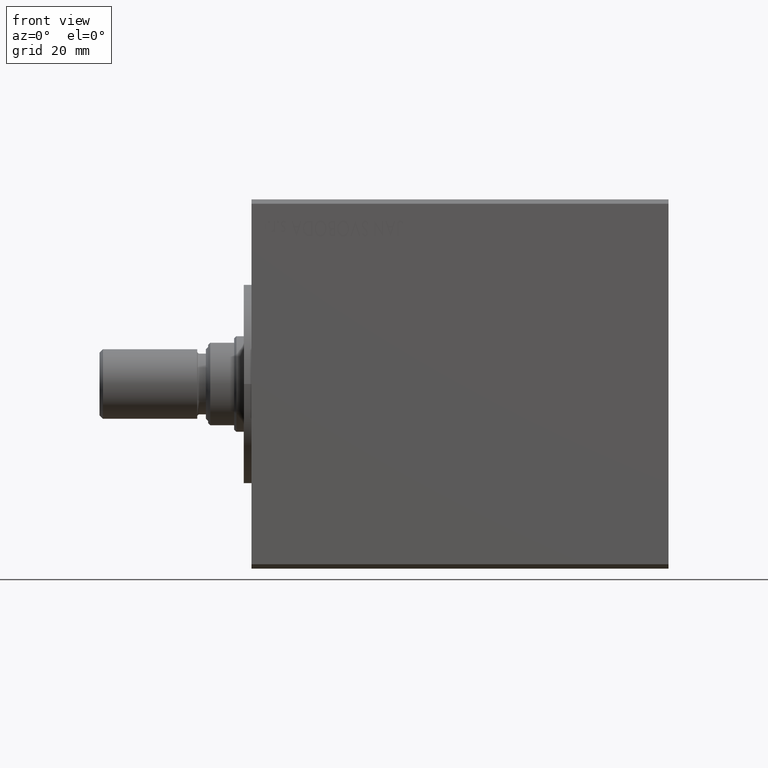
[diagram: clean part render]
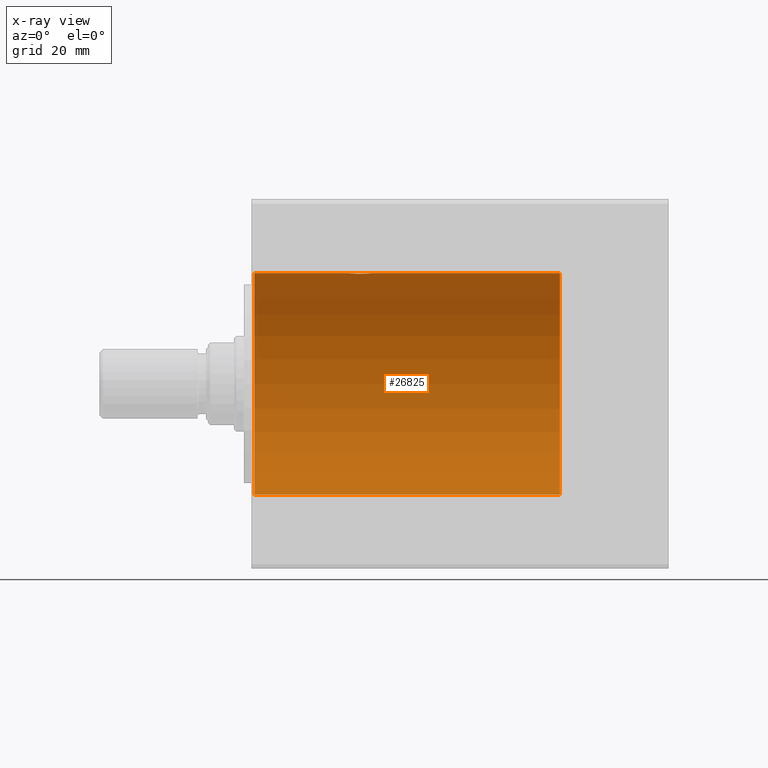
[diagram: x-ray — body ghosted, one internal face saturated and labeled with its STEP entity id]
A machine part, front view, then the same camera in x-ray: the body is ghosted and one INTERNAL B-rep face — a face not visible from any outside direction — is saturated and labeled: STEP entity #26825.
In plain terms, the highlighted cylindrical surface (partial cylindrical patch) has radius 25.5 mm, axis along (-1, -0, -0).
Its self-contained STEP definition (entity closure, byte-faithful):
#377 = ORIENTED_EDGE ( 'NONE', *, *, #38221, .T. ) ;
#395 = CARTESIAN_POINT ( 'NONE',  ( 71.00000000000000000, 0.000000000000000000, 25.50000000000000000 ) ) ;
#1732 = CARTESIAN_POINT ( 'NONE',  ( 0.7000000000000061728, 3.122849337825750222E-15, -25.50000000000000000 ) ) ;
#2897 = CARTESIAN_POINT ( 'NONE',  ( 23.32301682331572579, 2.186849450543041140, 25.40625268806380888 ) ) ;
#3578 = CARTESIAN_POINT ( 'NONE',  ( 22.39041548042342811, 0.8860360456872166113, 25.48514702329194392 ) ) ;
#5373 = LINE ( 'NONE', #18889, #5634 ) ;
#5634 = VECTOR ( 'NONE', #40252, 1000.000000000000000 ) ;
#6516 = CARTESIAN_POINT ( 'NONE',  ( 27.75000000000000355, 8.048106544984229456E-17, 25.50000000000000000 ) ) ;
#6957 = CARTESIAN_POINT ( 'NONE',  ( 27.75000000000000355, 0.1818411675653318349, 25.49999999999999645 ) ) ;
#6984 = CARTESIAN_POINT ( 'NONE',  ( 71.00000000000000000, 3.122849337825750222E-15, -25.50000000000000000 ) ) ;
#7187 = CARTESIAN_POINT ( 'NONE',  ( 24.63913991527716263, 2.732148236853054080, 25.35323677381548890 ) ) ;
#8236 = ORIENTED_EDGE ( 'NONE', *, *, #9513, .T. ) ;
#8294 = EDGE_LOOP ( 'NONE', ( #25131, #22556, #42440, #8236, #8554, #377 ) ) ;
#8427 = CIRCLE ( 'NONE', #12028, 25.50000000000000000 ) ;
#8554 = ORIENTED_EDGE ( 'NONE', *, *, #27586, .T. ) ;
#8738 = VERTEX_POINT ( 'NONE', #395 ) ;
#9057 = DIRECTION ( 'NONE',  ( -1.000000000000000000, -0.000000000000000000, -0.000000000000000000 ) ) ;
#9161 = EDGE_CURVE ( 'NONE', #8738, #30151, #12653, .T. ) ;
#9422 = CARTESIAN_POINT ( 'NONE',  ( 0.7000000000000061728, 0.000000000000000000, 25.50000000000000000 ) ) ;
#9513 = EDGE_CURVE ( 'NONE', #30151, #12973, #32291, .T. ) ;
#10129 = CARTESIAN_POINT ( 'NONE',  ( 22.92734681539844743, 1.816470127182206795, 25.43554610187512921 ) ) ;
#10350 = CARTESIAN_POINT ( 'NONE',  ( 26.37837412836197970, 2.386478692563842152, 25.38828281995184000 ) ) ;
#10567 = CARTESIAN_POINT ( 'NONE',  ( 26.21848376133624114, 2.471815935018347510, 25.38000938747137170 ) ) ;
#10792 = CARTESIAN_POINT ( 'NONE',  ( 22.33838551574566011, 0.7145913488848059103, 25.49059565528228433 ) ) ;
#12028 = AXIS2_PLACEMENT_3D ( 'NONE', #25862, #40026, #40470 ) ;
#12653 = LINE ( 'NONE', #36954, #42658 ) ;
#12973 = VERTEX_POINT ( 'NONE', #22092 ) ;
#13935 = CARTESIAN_POINT ( 'NONE',  ( 27.60924546800652024, 0.8870333714824095717, 25.48511214065471719 ) ) ;
#14888 = FACE_OUTER_BOUND ( 'NONE', #8294, .T. ) ;
#15331 = DIRECTION ( 'NONE',  ( 0.000000000000000000, 0.000000000000000000, 1.000000000000000000 ) ) ;
#16371 = VERTEX_POINT ( 'NONE', #6984 ) ;
#16644 = CARTESIAN_POINT ( 'NONE',  ( 23.18411208796796785, 2.073163292536371660, 25.41591161430256918 ) ) ;
#17325 = CARTESIAN_POINT ( 'NONE',  ( 22.26799626100015672, 0.3619226834345124488, 25.49804148612619059 ) ) ;
#17543 = CARTESIAN_POINT ( 'NONE',  ( 24.28632799911198603, 2.661865185172593407, 25.36071218702769769 ) ) ;
#17603 = EDGE_CURVE ( 'NONE', #16371, #32789, #5373, .T. ) ;
#17712 = VERTEX_POINT ( 'NONE', #9422 ) ;
#18889 = CARTESIAN_POINT ( 'NONE',  ( 71.00000000000000000, 3.122849337825750222E-15, -25.50000000000000000 ) ) ;
#19106 = EDGE_CURVE ( 'NONE', #8738, #16371, #44480, .T. ) ;
#19447 = DIRECTION ( 'NONE',  ( -1.000000000000000000, 0.000000000000000000, 0.000000000000000000 ) ) ;
#20248 = CARTESIAN_POINT ( 'NONE',  ( 24.11483395142550279, 2.609880391194553617, 25.36618467193965998 ) ) ;
#20466 = CARTESIAN_POINT ( 'NONE',  ( 25.18051211663669164, 2.749934396358983069, 25.35128913526986238 ) ) ;
#20689 = CARTESIAN_POINT ( 'NONE',  ( 25.71412694923393261, 2.661820881908843361, 25.36071708903062571 ) ) ;
#20911 = CARTESIAN_POINT ( 'NONE',  ( 23.62085709230549568, 2.385906103428721892, 25.38833271868618624 ) ) ;
#21965 = DIRECTION ( 'NONE',  ( -1.000000000000000000, -0.000000000000000000, -0.000000000000000000 ) ) ;
#22092 = CARTESIAN_POINT ( 'NONE',  ( 22.25000000000000000, -2.520213376954827465E-23, 25.50000000000000000 ) ) ;
#22556 = ORIENTED_EDGE ( 'NONE', *, *, #19106, .F. ) ;
#23616 = CARTESIAN_POINT ( 'NONE',  ( 27.47113695655389520, 1.220029612915042305, 25.47134265733710023 ) ) ;
#23845 = CARTESIAN_POINT ( 'NONE',  ( 25.35904867845211186, 2.732462580437269306, 25.35320314918266149 ) ) ;
#24051 = CARTESIAN_POINT ( 'NONE',  ( 27.75000000000000355, 8.048106544984229456E-17, 25.50000000000000000 ) ) ;
#24065 = CARTESIAN_POINT ( 'NONE',  ( 27.66219387477480041, 0.7122967098376464801, 25.49065645963403526 ) ) ;
#25131 = ORIENTED_EDGE ( 'NONE', *, *, #17603, .F. ) ;
#25784 = AXIS2_PLACEMENT_3D ( 'NONE', #36998, #19447, #40369 ) ;
#25862 = CARTESIAN_POINT ( 'NONE',  ( 0.7000000000000061728, 0.000000000000000000, 0.000000000000000000 ) ) ;
#25907 = CARTESIAN_POINT ( 'NONE',  ( 71.00000000000000000, 0.000000000000000000, 0.000000000000000000 ) ) ;
#26825 = ADVANCED_FACE ( 'NONE', ( #14888 ), #32884, .F. ) ;
#27218 = CARTESIAN_POINT ( 'NONE',  ( 27.73214168976365102, 0.3606169945932549692, 25.49805656769039430 ) ) ;
#27439 = CARTESIAN_POINT ( 'NONE',  ( 26.81737431410829586, 2.071662962496991334, 25.41602582305861446 ) ) ;
#27586 = EDGE_CURVE ( 'NONE', #12973, #17712, #28294, .T. ) ;
#27883 = CARTESIAN_POINT ( 'NONE',  ( 22.52839946558070494, 1.219090660012199789, 25.47138780348912235 ) ) ;
#28294 = LINE ( 'NONE', #31678, #37102 ) ;
#30151 = VERTEX_POINT ( 'NONE', #24051 ) ;
#31678 = CARTESIAN_POINT ( 'NONE',  ( 71.00000000000000000, 0.000000000000000000, 25.50000000000000000 ) ) ;
#32291 = B_SPLINE_CURVE_WITH_KNOTS ( 'NONE', 3,
 ( #6516, #6957, #27218, #24065, #13935, #23616, #41608, #37805, #44543, #27439, #37123, #10350, #10567, #41164, #20689, #23845, #20466, #37586, #7187, #17543, #20248, #40941, #20911, #2897, #16644, #10129, #34446, #41381, #27883, #3578, #10792, #17325, #37359, #33766 ),
 .UNSPECIFIED., .F., .F.,
 ( 4, 2, 2, 2, 2, 2, 2, 2, 2, 2, 2, 2, 2, 2, 2, 2, 4 ),
 ( 7.820387884921159682E-20, 0.0005377504153540451368, 0.001075500830708090057, 0.001613251246062135085, 0.002151001661416180114, 0.002688752076770225142, 0.003226502492124270170, 0.003764252907478314765, 0.004302003322832360227, 0.004839753738186405689, 0.005377504153540450284, 0.005915254568894494878, 0.006453004984248540341, 0.006990755399602586670, 0.007528505814956631265, 0.008066256230310677594, 0.008604006645664723923 ),
 .UNSPECIFIED. ) ;
#32789 = VERTEX_POINT ( 'NONE', #1732 ) ;
#32884 = CYLINDRICAL_SURFACE ( 'NONE', #42795, 25.50000000000000000 ) ;
#33766 = CARTESIAN_POINT ( 'NONE',  ( 22.25000000000000000, -2.520213376954827465E-23, 25.50000000000000000 ) ) ;
#34446 = CARTESIAN_POINT ( 'NONE',  ( 22.81367472156660625, 1.677664168439503944, 25.44518982471208091 ) ) ;
#36260 = DIRECTION ( 'NONE',  ( -1.000000000000000000, -0.000000000000000000, -0.000000000000000000 ) ) ;
#36954 = CARTESIAN_POINT ( 'NONE',  ( 71.00000000000000000, 0.000000000000000000, 25.50000000000000000 ) ) ;
#36998 = CARTESIAN_POINT ( 'NONE',  ( 71.00000000000000000, 0.000000000000000000, 0.000000000000000000 ) ) ;
#37102 = VECTOR ( 'NONE', #21965, 1000.000000000000000 ) ;
#37123 = CARTESIAN_POINT ( 'NONE',  ( 26.67899044711617762, 2.185448893543723958, 25.40637711736232518 ) ) ;
#37359 = CARTESIAN_POINT ( 'NONE',  ( 22.25000000000001421, 0.1795439971740303842, 25.50000000000000711 ) ) ;
#37586 = CARTESIAN_POINT ( 'NONE',  ( 24.82149231634158326, 2.750065238390865474, 25.35127494207982224 ) ) ;
#37805 = CARTESIAN_POINT ( 'NONE',  ( 27.18703867904413229, 1.676797748643024999, 25.44525020880457689 ) ) ;
#38221 = EDGE_CURVE ( 'NONE', #17712, #32789, #8427, .T. ) ;
#40026 = DIRECTION ( 'NONE',  ( -1.000000000000000000, 0.000000000000000000, 0.000000000000000000 ) ) ;
#40252 = DIRECTION ( 'NONE',  ( -1.000000000000000000, -0.000000000000000000, -0.000000000000000000 ) ) ;
#40369 = DIRECTION ( 'NONE',  ( 0.000000000000000000, 0.000000000000000000, 1.000000000000000000 ) ) ;
#40470 = DIRECTION ( 'NONE',  ( 0.000000000000000000, 0.000000000000000000, -1.000000000000000000 ) ) ;
#40941 = CARTESIAN_POINT ( 'NONE',  ( 23.78171663419918147, 2.471999237561344653, 25.37999251845405624 ) ) ;
#41164 = CARTESIAN_POINT ( 'NONE',  ( 25.88758609357714491, 2.608978271227879731, 25.36627648877553654 ) ) ;
#41381 = CARTESIAN_POINT ( 'NONE',  ( 22.61454708910614997, 1.379923800465350681, 25.46307233195958020 ) ) ;
#41608 = CARTESIAN_POINT ( 'NONE',  ( 27.38664218485787671, 1.377943378715643430, 25.46318285139502180 ) ) ;
#42440 = ORIENTED_EDGE ( 'NONE', *, *, #9161, .T. ) ;
#42658 = VECTOR ( 'NONE', #9057, 1000.000000000000000 ) ;
#42795 = AXIS2_PLACEMENT_3D ( 'NONE', #25907, #36260, #15331 ) ;
#44480 = CIRCLE ( 'NONE', #25784, 25.50000000000000000 ) ;
#44543 = CARTESIAN_POINT ( 'NONE',  ( 27.07094674874814899, 1.818190416763847628, 25.43541506791175166 ) ) ;